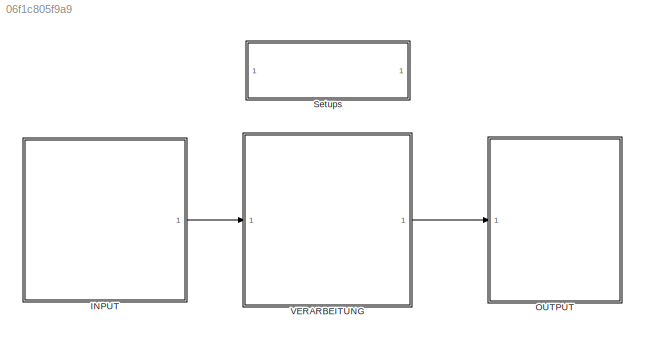
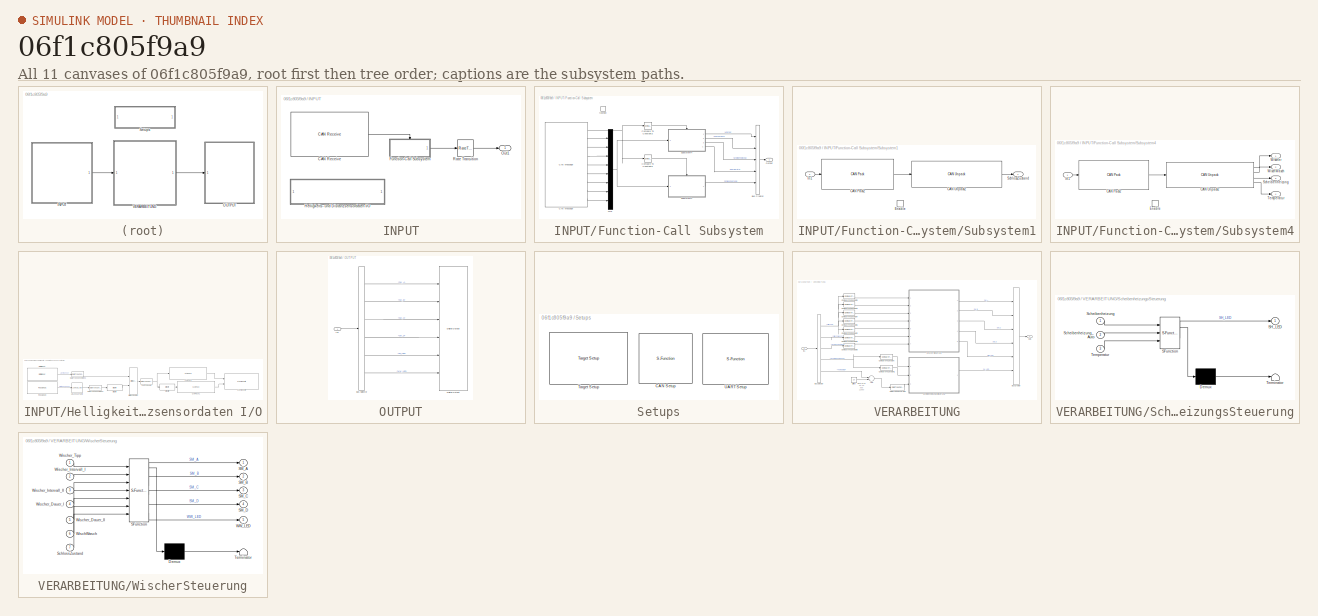
[diagram: thumbnail index - all 11 canvases of the model, root first then tree order]
MODEL slx_06f1c805f9a9
KIND model
CONFIG AbsTol = auto
CONFIG EnableMultiTasking = off
CONFIG FixedStep = auto
CONFIG MaxStep = auto
CONFIG MinStep = auto
CONFIG PreLoadFcn = waijung.modelPreload; % Required for working with Waijung Blockset. Do not remove.
CONFIG RelTol = 1e-3
CONFIG SampleTimeConstraint = Unconstrained
CONFIG Solver = FixedStepAuto
CONFIG SolverName = FixedStepAuto
CONFIG StartTime = 0.0
CONFIG StopTime = 10.0
BLOCK [SubSystem] INPUT
  Ports = [0, 1]
  RequestExecContextInheritance = off
BLOCK [Reference] INPUT/CAN Receive  REF=stm32f4_canbus_lib/CAN Receive
  Ports = [0, 1]
  SourceBlock = stm32f4_canbus_lib/CAN Receive
  SourceProductName = Waijung Blockset
  SourceType = stm32f4_can
BLOCK [SubSystem] INPUT/Function-Call Subsystem
  Ports = [0, 1, 0, 1]
  RequestExecContextInheritance = off
  TreatAsAtomicUnit = on
BLOCK [BusCreator] INPUT/Function-Call Subsystem/Bus Creator
  DisplayOption = bar
  InheritFromInputs = on
  Inputs = 5
  Ports = [5, 1]
BLOCK [Reference] INPUT/Function-Call Subsystem/CAN Message  REF=stm32f4_canbus_lib/CAN Message
  Ports = [0, 9]
  SourceBlock = stm32f4_canbus_lib/CAN Message
  SourceProductName = Waijung Blockset
  SourceType = stm32f4_can
BLOCK [Reference] INPUT/Function-Call Subsystem/Compare To Constant3  REF=simulink/Logic and Bit
Operations/Compare
To Constant
  Ports = [1, 1]
  SourceBlock = simulink/Logic and Bit\nOperations/Compare\nTo Constant
  SourceProductBaseCode = SL
  SourceProductName = Simulink
  SourceType = Compare To Constant
BLOCK [Reference] INPUT/Function-Call Subsystem/Compare To Constant5  REF=simulink/Logic and Bit
Operations/Compare
To Constant
  Ports = [1, 1]
  SourceBlock = simulink/Logic and Bit\nOperations/Compare\nTo Constant
  SourceProductBaseCode = SL
  SourceProductName = Simulink
  SourceType = Compare To Constant
BLOCK [Mux] INPUT/Function-Call Subsystem/Mux
  DisplayOption = bar
  Inputs = 8
  Ports = [8, 1]
BLOCK [Outport] INPUT/Function-Call Subsystem/Output
  IconDisplay = Port number
  VectorParamsAs1DForOutWhenUnconnected = off
BLOCK [SubSystem] INPUT/Function-Call Subsystem/Subsystem1
  Ports = [1, 1, 1]
  RequestExecContextInheritance = off
BLOCK [Reference] INPUT/Function-Call Subsystem/Subsystem1/CAN Pack2  REF=canmsglib/CAN Pack
  Ports = [1, 1]
  SourceBlock = canmsglib/CAN Pack
  SourceProductBaseCode = XP
  SourceProductName = Simulink Real-Time
  SourceType = CAN Pack
BLOCK [Reference] INPUT/Function-Call Subsystem/Subsystem1/CAN Unpack2  REF=canmsglib/CAN Unpack
  Ports = [1, 1]
  SourceBlock = canmsglib/CAN Unpack
  SourceProductBaseCode = XP
  SourceProductName = Simulink Real-Time
  SourceType = CAN Unpack
BLOCK [EnablePort] INPUT/Function-Call Subsystem/Subsystem1/Enable
  Ports = []
BLOCK [Inport] INPUT/Function-Call Subsystem/Subsystem1/In1
  IconDisplay = Port number
BLOCK [Outport] INPUT/Function-Call Subsystem/Subsystem1/SchlossZustand
  IconDisplay = Port number
  VectorParamsAs1DForOutWhenUnconnected = off
BLOCK [SubSystem] INPUT/Function-Call Subsystem/Subsystem4
  Ports = [1, 4, 1]
  RequestExecContextInheritance = off
BLOCK [Reference] INPUT/Function-Call Subsystem/Subsystem4/CAN Pack2  REF=canmsglib/CAN Pack
  Ports = [1, 1]
  SourceBlock = canmsglib/CAN Pack
  SourceProductBaseCode = XP
  SourceProductName = Simulink Real-Time
  SourceType = CAN Pack
BLOCK [Reference] INPUT/Function-Call Subsystem/Subsystem4/CAN Unpack2  REF=canmsglib/CAN Unpack
  Ports = [1, 4]
  SourceBlock = canmsglib/CAN Unpack
  SourceProductBaseCode = XP
  SourceProductName = Simulink Real-Time
  SourceType = CAN Unpack
BLOCK [EnablePort] INPUT/Function-Call Subsystem/Subsystem4/Enable
  Ports = []
BLOCK [Inport] INPUT/Function-Call Subsystem/Subsystem4/In1
  IconDisplay = Port number
BLOCK [Outport] INPUT/Function-Call Subsystem/Subsystem4/Scheibenheizung
  IconDisplay = Port number
  Port = 3
  VectorParamsAs1DForOutWhenUnconnected = off
BLOCK [Outport] INPUT/Function-Call Subsystem/Subsystem4/Temperatur
  IconDisplay = Port number
  Port = 4
  VectorParamsAs1DForOutWhenUnconnected = off
BLOCK [Outport] INPUT/Function-Call Subsystem/Subsystem4/WischWasch
  IconDisplay = Port number
  Port = 2
  VectorParamsAs1DForOutWhenUnconnected = off
BLOCK [Outport] INPUT/Function-Call Subsystem/Subsystem4/Wischer
  IconDisplay = Port number
  VectorParamsAs1DForOutWhenUnconnected = off
BLOCK [TriggerPort] INPUT/Function-Call Subsystem/function
  Ports = []
  StatesWhenEnabling = held
  TriggerType = function-call
  VariantControl = Variant
BLOCK [SubSystem] INPUT/Helligkeits- und Distanzsensordaten I//O
  Ports = []
  RequestExecContextInheritance = off
BLOCK [Lookup_n-D] INPUT/Helligkeits- und Distanzsensordaten I//O/1-D Lookup Table
  BreakpointsForDimension1 = [310,3800]
  IndexSearchMethod = Linear search
  InternalRulePriority = Speed
  NumberOfTableDimensions = 1
  Ports = [1, 1]
  RndMeth = Simplest
  Table = [500,0]
BLOCK [Reference] INPUT/Helligkeits- und Distanzsensordaten I//O/Bit Shift  REF=hdlsllib/Logic and Bit
Operations/Bit Shift
  Ports = [1, 1]
  SourceBlock = hdlsllib/Logic and Bit\nOperations/Bit Shift
  SourceProductBaseCode = SL
  SourceProductName = Simulink
  SourceType = Bit Shift
BLOCK [Reference] INPUT/Helligkeits- und Distanzsensordaten I//O/Bit Shift1  REF=hdlsllib/Logic and Bit
Operations/Bit Shift
  Ports = [1, 1]
  SourceBlock = hdlsllib/Logic and Bit\nOperations/Bit Shift
  SourceProductBaseCode = SL
  SourceProductName = Simulink
  SourceType = Bit Shift
BLOCK [Reference] INPUT/Helligkeits- und Distanzsensordaten I//O/Bitwise Operator  REF=simulink/Logic and Bit
Operations/Bitwise
Operator
  Ports = [2, 1]
  SourceBlock = simulink/Logic and Bit\nOperations/Bitwise\nOperator
  SourceProductBaseCode = SL
  SourceProductName = Simulink
  SourceType = Bitwise Operator
BLOCK [Reference] INPUT/Helligkeits- und Distanzsensordaten I//O/CAN Pack  REF=canmsglib/CAN Pack
  Ports = [1, 1]
  SourceBlock = canmsglib/CAN Pack
  SourceProductBaseCode = XP
  SourceProductName = Simulink Real-Time
  SourceType = CAN Pack
BLOCK [Reference] INPUT/Helligkeits- und Distanzsensordaten I//O/CAN Pack1  REF=canmsglib/CAN Pack
  Ports = [1, 1]
  SourceBlock = canmsglib/CAN Pack
  SourceProductBaseCode = XP
  SourceProductName = Simulink Real-Time
  SourceType = CAN Pack
BLOCK [Reference] INPUT/Helligkeits- und Distanzsensordaten I//O/CAN Transmit  REF=stm32f4_canbus_lib/CAN Transmit
  Ports = [2]
  SourceBlock = stm32f4_canbus_lib/CAN Transmit
  SourceType = stm32f4_can
BLOCK [DataTypeConversion] INPUT/Helligkeits- und Distanzsensordaten I//O/Cast To Double
  OutDataTypeStr = double
  RndMeth = Floor
  SaturateOnIntegerOverflow = off
BLOCK [DataTypeConversion] INPUT/Helligkeits- und Distanzsensordaten I//O/Data Type Conversion1
  OutDataTypeStr = uint16
  RndMeth = Floor
  SaturateOnIntegerOverflow = off
BLOCK [DataTypeConversion] INPUT/Helligkeits- und Distanzsensordaten I//O/Data Type Conversion2
  OutDataTypeStr = uint16
  RndMeth = Floor
  SaturateOnIntegerOverflow = off
BLOCK [Reference] INPUT/Helligkeits- und Distanzsensordaten I//O/Digital Input  REF=stm32f4_io_lib/Digital Input
  Ports = [0, 1]
  SourceBlock = stm32f4_io_lib/Digital Input
  SourceType = stm32f4_digital_input
BLOCK [Reference] INPUT/Helligkeits- und Distanzsensordaten I//O/Regular ADC  REF=stm32f4_adc_lib/Regular ADC
  Ports = [0, 1]
  SourceBlock = stm32f4_adc_lib/Regular ADC
  SourceType = stm32f4_regular_adc
BLOCK [Outport] INPUT/Out1
  IconDisplay = Port number
  VectorParamsAs1DForOutWhenUnconnected = off
BLOCK [RateTransition] INPUT/Rate Transition
BLOCK [SubSystem] OUTPUT
  Ports = [1]
  RequestExecContextInheritance = off
BLOCK [BusSelector] OUTPUT/Bus Selector
  OutputAsBus = off
  OutputSignals = SM_A,SM_B,SM_C,SM_D,SH_LED,WW_LED
  Ports = [1, 6]
BLOCK [Reference] OUTPUT/Digital Output  REF=stm32f4_io_lib/Digital Output
  Ports = [6]
  SourceBlock = stm32f4_io_lib/Digital Output
  SourceProductName = Waijung Blockset
  SourceType = stm32f4_digital_output
BLOCK [Inport] OUTPUT/In1
  IconDisplay = Port number
BLOCK [SubSystem] Setups
  Ports = []
  RequestExecContextInheritance = off
BLOCK [S-Function] Setups/CAN Setup
  EnableBusSupport = off
  FunctionName = stm32f4_can
  Parameters = conf,canmodule,0,inputarray,outputarray,'','',confstr,sampletime,sampletimestr,blockid
  Ports = []
  SFcnIsStateOwnerBlock = off
  SFunctionDeploymentMode = off
BLOCK [Reference] Setups/Target Setup  REF=stm32f4_device_config_lib/Target Setup
  Ports = []
  Priority = 100
  SourceBlock = stm32f4_device_config_lib/Target Setup
  SourceProductName = Waijung Blockset
  SourceType = stm32f4_target_setup
BLOCK [S-Function] Setups/UART Setup
  EnableBusSupport = off
  FunctionName = stm32f4_usart
  Parameters = configuration,uartmodule,transfer,baudrate,inputtype,outputtype,confstr,binheaderarray,binterminatorarray,asciiheader,asciiterminator,bindatalength,packetmode,varname,sampletime,sampletimestr,blockid
  Ports = []
  Priority = 1
  SFcnIsStateOwnerBlock = off
  SFunctionDeploymentMode = off
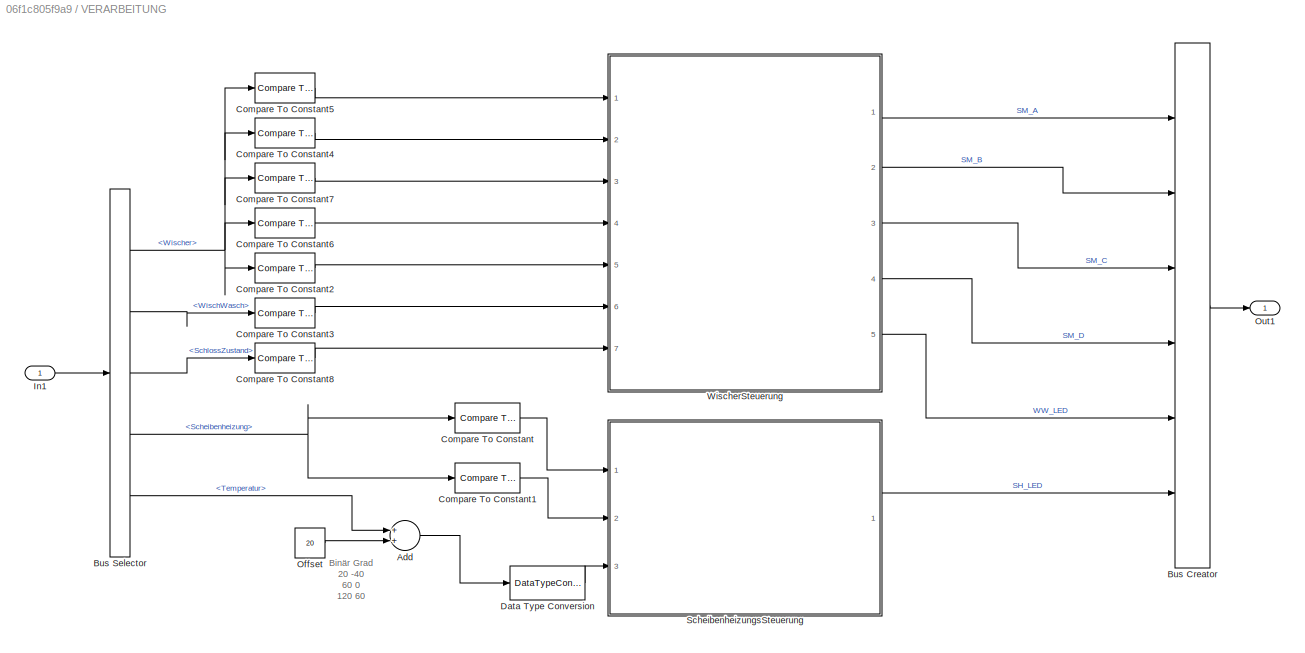
BLOCK [SubSystem] VERARBEITUNG
  Ports = [1, 1]
  RequestExecContextInheritance = off
BLOCK [Sum] VERARBEITUNG/Add
  InputSameDT = off
  OutDataTypeStr = Inherit: Inherit via internal rule
  Ports = [2, 1]
  SaturateOnIntegerOverflow = off
BLOCK [BusCreator] VERARBEITUNG/Bus Creator
  DisplayOption = bar
  InheritFromInputs = on
  Inputs = 6
  Ports = [6, 1]
BLOCK [BusSelector] VERARBEITUNG/Bus Selector
  OutputAsBus = off
  OutputSignals = Wischer,WischWasch,SchlossZustand,Scheibenheizung,Temperatur
  Ports = [1, 5]
BLOCK [Reference] VERARBEITUNG/Compare To Constant  REF=simulink/Logic and Bit
Operations/Compare
To Constant
  Ports = [1, 1]
  SourceBlock = simulink/Logic and Bit\nOperations/Compare\nTo Constant
  SourceProductBaseCode = SL
  SourceProductName = Simulink
  SourceType = Compare To Constant
BLOCK [Reference] VERARBEITUNG/Compare To Constant1  REF=simulink/Logic and Bit
Operations/Compare
To Constant
  Ports = [1, 1]
  SourceBlock = simulink/Logic and Bit\nOperations/Compare\nTo Constant
  SourceProductBaseCode = SL
  SourceProductName = Simulink
  SourceType = Compare To Constant
BLOCK [Reference] VERARBEITUNG/Compare To Constant2  REF=simulink/Logic and Bit
Operations/Compare
To Constant
  Ports = [1, 1]
  SourceBlock = simulink/Logic and Bit\nOperations/Compare\nTo Constant
  SourceProductBaseCode = SL
  SourceProductName = Simulink
  SourceType = Compare To Constant
BLOCK [Reference] VERARBEITUNG/Compare To Constant3  REF=simulink/Logic and Bit
Operations/Compare
To Constant
  Ports = [1, 1]
  SourceBlock = simulink/Logic and Bit\nOperations/Compare\nTo Constant
  SourceProductBaseCode = SL
  SourceProductName = Simulink
  SourceType = Compare To Constant
BLOCK [Reference] VERARBEITUNG/Compare To Constant4  REF=simulink/Logic and Bit
Operations/Compare
To Constant
  Ports = [1, 1]
  SourceBlock = simulink/Logic and Bit\nOperations/Compare\nTo Constant
  SourceProductBaseCode = SL
  SourceProductName = Simulink
  SourceType = Compare To Constant
BLOCK [Reference] VERARBEITUNG/Compare To Constant5  REF=simulink/Logic and Bit
Operations/Compare
To Constant
  Ports = [1, 1]
  SourceBlock = simulink/Logic and Bit\nOperations/Compare\nTo Constant
  SourceProductBaseCode = SL
  SourceProductName = Simulink
  SourceType = Compare To Constant
BLOCK [Reference] VERARBEITUNG/Compare To Constant6  REF=simulink/Logic and Bit
Operations/Compare
To Constant
  Ports = [1, 1]
  SourceBlock = simulink/Logic and Bit\nOperations/Compare\nTo Constant
  SourceProductBaseCode = SL
  SourceProductName = Simulink
  SourceType = Compare To Constant
BLOCK [Reference] VERARBEITUNG/Compare To Constant7  REF=simulink/Logic and Bit
Operations/Compare
To Constant
  Ports = [1, 1]
  SourceBlock = simulink/Logic and Bit\nOperations/Compare\nTo Constant
  SourceProductBaseCode = SL
  SourceProductName = Simulink
  SourceType = Compare To Constant
BLOCK [Reference] VERARBEITUNG/Compare To Constant8  REF=simulink/Logic and Bit
Operations/Compare
To Constant
  Ports = [1, 1]
  SourceBlock = simulink/Logic and Bit\nOperations/Compare\nTo Constant
  SourceProductBaseCode = SL
  SourceProductName = Simulink
  SourceType = Compare To Constant
BLOCK [DataTypeConversion] VERARBEITUNG/Data Type Conversion
  OutDataTypeStr = int16
  RndMeth = Floor
  SaturateOnIntegerOverflow = off
BLOCK [Inport] VERARBEITUNG/In1
  IconDisplay = Port number
BLOCK [Constant] VERARBEITUNG/Offset
  Value = 20
BLOCK [Outport] VERARBEITUNG/Out1
  IconDisplay = Port number
  VectorParamsAs1DForOutWhenUnconnected = off
BLOCK [SubSystem] VERARBEITUNG/ScheibenheizungsSteuerung
  ErrorFcn = Stateflow.Translate.translate
  PermitHierarchicalResolution = ExplicitOnly
  Ports = [3, 1]
  RequestExecContextInheritance = off
  SFBlockType = Chart
  TreatAsAtomicUnit = on
BLOCK [Demux] VERARBEITUNG/ScheibenheizungsSteuerung/ Demux 
  Outputs = 1
  Ports = [1, 1]
BLOCK [S-Function] VERARBEITUNG/ScheibenheizungsSteuerung/ SFunction 
  EnableBusSupport = off
  FunctionName = sf_sfun
  PortCounts = [3 2]
  Ports = [3, 2]
  SFcnIsStateOwnerBlock = off
  SFunctionDeploymentMode = off
  Tag = Stateflow S-Function 6
BLOCK [Terminator] VERARBEITUNG/ScheibenheizungsSteuerung/ Terminator 
BLOCK [Outport] VERARBEITUNG/ScheibenheizungsSteuerung/SH_LED
  IconDisplay = Port number
  VectorParamsAs1DForOutWhenUnconnected = off
BLOCK [Inport] VERARBEITUNG/ScheibenheizungsSteuerung/Scheibenheizung
  IconDisplay = Port number
BLOCK [Inport] VERARBEITUNG/ScheibenheizungsSteuerung/Scheibenheizung_Auto
  IconDisplay = Port number
  Port = 2
BLOCK [Inport] VERARBEITUNG/ScheibenheizungsSteuerung/Temperatur
  IconDisplay = Port number
  Port = 3
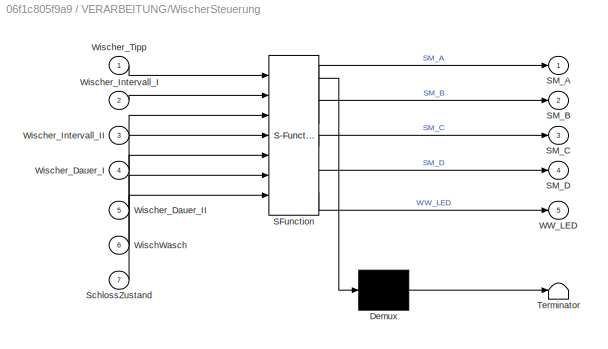
BLOCK [SubSystem] VERARBEITUNG/WischerSteuerung
  ErrorFcn = Stateflow.Translate.translate
  PermitHierarchicalResolution = ExplicitOnly
  Ports = [7, 5]
  RequestExecContextInheritance = off
  SFBlockType = Chart
  TreatAsAtomicUnit = on
BLOCK [Demux] VERARBEITUNG/WischerSteuerung/ Demux 
  Outputs = 1
  Ports = [1, 1]
BLOCK [S-Function] VERARBEITUNG/WischerSteuerung/ SFunction 
  EnableBusSupport = off
  FunctionName = sf_sfun
  PortCounts = [7 6]
  Ports = [7, 6]
  SFcnIsStateOwnerBlock = off
  SFunctionDeploymentMode = off
  Tag = Stateflow S-Function 5
BLOCK [Terminator] VERARBEITUNG/WischerSteuerung/ Terminator 
BLOCK [Outport] VERARBEITUNG/WischerSteuerung/SM_A
  IconDisplay = Port number
  VectorParamsAs1DForOutWhenUnconnected = off
BLOCK [Outport] VERARBEITUNG/WischerSteuerung/SM_B
  IconDisplay = Port number
  Port = 2
  VectorParamsAs1DForOutWhenUnconnected = off
BLOCK [Outport] VERARBEITUNG/WischerSteuerung/SM_C
  IconDisplay = Port number
  Port = 3
  VectorParamsAs1DForOutWhenUnconnected = off
BLOCK [Outport] VERARBEITUNG/WischerSteuerung/SM_D
  IconDisplay = Port number
  Port = 4
  VectorParamsAs1DForOutWhenUnconnected = off
BLOCK [Inport] VERARBEITUNG/WischerSteuerung/SchlossZustand
  IconDisplay = Port number
  Port = 7
BLOCK [Outport] VERARBEITUNG/WischerSteuerung/WW_LED
  IconDisplay = Port number
  Port = 5
  VectorParamsAs1DForOutWhenUnconnected = off
BLOCK [Inport] VERARBEITUNG/WischerSteuerung/WischWasch
  IconDisplay = Port number
  Port = 6
BLOCK [Inport] VERARBEITUNG/WischerSteuerung/Wischer_Dauer_I
  IconDisplay = Port number
  Port = 4
BLOCK [Inport] VERARBEITUNG/WischerSteuerung/Wischer_Dauer_II
  IconDisplay = Port number
  Port = 5
BLOCK [Inport] VERARBEITUNG/WischerSteuerung/Wischer_Intervall_I
  IconDisplay = Port number
  Port = 2
BLOCK [Inport] VERARBEITUNG/WischerSteuerung/Wischer_Intervall_II
  IconDisplay = Port number
  Port = 3
BLOCK [Inport] VERARBEITUNG/WischerSteuerung/Wischer_Tipp
  IconDisplay = Port number
ANNOTATION VERARBEITUNG: Binär Grad 20 -40 60 0 120 60
LINE INPUT/CAN Receive:1 -> INPUT/Function-Call Subsystem:trigger
LINE INPUT/Function-Call Subsystem/Bus Creator:1 -> INPUT/Function-Call Subsystem/Output:1
NET INPUT/Function-Call Subsystem/CAN Message:1 -> INPUT/Function-Call Subsystem/Compare To Constant3:1, INPUT/Function-Call Subsystem/Compare To Constant5:1
LINE INPUT/Function-Call Subsystem/CAN Message:2 -> INPUT/Function-Call Subsystem/Mux:1
LINE INPUT/Function-Call Subsystem/CAN Message:3 -> INPUT/Function-Call Subsystem/Mux:2
LINE INPUT/Function-Call Subsystem/CAN Message:4 -> INPUT/Function-Call Subsystem/Mux:3
LINE INPUT/Function-Call Subsystem/CAN Message:5 -> INPUT/Function-Call Subsystem/Mux:4
LINE INPUT/Function-Call Subsystem/CAN Message:6 -> INPUT/Function-Call Subsystem/Mux:5
LINE INPUT/Function-Call Subsystem/CAN Message:7 -> INPUT/Function-Call Subsystem/Mux:6
LINE INPUT/Function-Call Subsystem/CAN Message:8 -> INPUT/Function-Call Subsystem/Mux:7
LINE INPUT/Function-Call Subsystem/CAN Message:9 -> INPUT/Function-Call Subsystem/Mux:8
LINE INPUT/Function-Call Subsystem/Compare To Constant3:1 -> INPUT/Function-Call Subsystem/Subsystem4:enable
LINE INPUT/Function-Call Subsystem/Compare To Constant5:1 -> INPUT/Function-Call Subsystem/Subsystem1:enable
NET INPUT/Function-Call Subsystem/Mux:1 -> INPUT/Function-Call Subsystem/Subsystem1:1, INPUT/Function-Call Subsystem/Subsystem4:1
LINE INPUT/Function-Call Subsystem/Subsystem1/CAN Pack2:1 -> INPUT/Function-Call Subsystem/Subsystem1/CAN Unpack2:1
LINE INPUT/Function-Call Subsystem/Subsystem1/CAN Unpack2:1 -> INPUT/Function-Call Subsystem/Subsystem1/SchlossZustand:1
LINE INPUT/Function-Call Subsystem/Subsystem1/In1:1 -> INPUT/Function-Call Subsystem/Subsystem1/CAN Pack2:1
LINE INPUT/Function-Call Subsystem/Subsystem1:1 -> INPUT/Function-Call Subsystem/Bus Creator:5
LINE INPUT/Function-Call Subsystem/Subsystem4/CAN Pack2:1 -> INPUT/Function-Call Subsystem/Subsystem4/CAN Unpack2:1
LINE INPUT/Function-Call Subsystem/Subsystem4/CAN Unpack2:1 -> INPUT/Function-Call Subsystem/Subsystem4/Wischer:1
LINE INPUT/Function-Call Subsystem/Subsystem4/CAN Unpack2:2 -> INPUT/Function-Call Subsystem/Subsystem4/WischWasch:1
LINE INPUT/Function-Call Subsystem/Subsystem4/CAN Unpack2:3 -> INPUT/Function-Call Subsystem/Subsystem4/Scheibenheizung:1
LINE INPUT/Function-Call Subsystem/Subsystem4/CAN Unpack2:4 -> INPUT/Function-Call Subsystem/Subsystem4/Temperatur:1
LINE INPUT/Function-Call Subsystem/Subsystem4/In1:1 -> INPUT/Function-Call Subsystem/Subsystem4/CAN Pack2:1
LINE INPUT/Function-Call Subsystem/Subsystem4:1 -> INPUT/Function-Call Subsystem/Bus Creator:1
LINE INPUT/Function-Call Subsystem/Subsystem4:2 -> INPUT/Function-Call Subsystem/Bus Creator:2
LINE INPUT/Function-Call Subsystem/Subsystem4:3 -> INPUT/Function-Call Subsystem/Bus Creator:3
LINE INPUT/Function-Call Subsystem/Subsystem4:4 -> INPUT/Function-Call Subsystem/Bus Creator:4
LINE INPUT/Function-Call Subsystem:1 -> INPUT/Rate Transition:1
LINE INPUT/Helligkeits- und Distanzsensordaten I//O/1-D Lookup Table:1 -> INPUT/Helligkeits- und Distanzsensordaten I//O/Data Type Conversion1:1
LINE INPUT/Helligkeits- und Distanzsensordaten I//O/Bit Shift1:1 -> INPUT/Helligkeits- und Distanzsensordaten I//O/CAN Pack1:1
LINE INPUT/Helligkeits- und Distanzsensordaten I//O/Bit Shift:1 -> INPUT/Helligkeits- und Distanzsensordaten I//O/Bitwise Operator:2
LINE INPUT/Helligkeits- und Distanzsensordaten I//O/Bitwise Operator:1 -> INPUT/Helligkeits- und Distanzsensordaten I//O/Cast To Double:1
LINE INPUT/Helligkeits- und Distanzsensordaten I//O/CAN Pack1:1 -> INPUT/Helligkeits- und Distanzsensordaten I//O/CAN Transmit:2
LINE INPUT/Helligkeits- und Distanzsensordaten I//O/CAN Pack:1 -> INPUT/Helligkeits- und Distanzsensordaten I//O/CAN Transmit:1
NET INPUT/Helligkeits- und Distanzsensordaten I//O/Cast To Double:1 -> INPUT/Helligkeits- und Distanzsensordaten I//O/Bit Shift1:1, INPUT/Helligkeits- und Distanzsensordaten I//O/CAN Pack:1
LINE INPUT/Helligkeits- und Distanzsensordaten I//O/Data Type Conversion1:1 -> INPUT/Helligkeits- und Distanzsensordaten I//O/Bit Shift:1
LINE INPUT/Helligkeits- und Distanzsensordaten I//O/Data Type Conversion2:1 -> INPUT/Helligkeits- und Distanzsensordaten I//O/Bitwise Operator:1
LINE INPUT/Helligkeits- und Distanzsensordaten I//O/Digital Input:1 -> INPUT/Helligkeits- und Distanzsensordaten I//O/Data Type Conversion2:1
LINE INPUT/Helligkeits- und Distanzsensordaten I//O/Regular ADC:1 -> INPUT/Helligkeits- und Distanzsensordaten I//O/1-D Lookup Table:1
LINE INPUT/Rate Transition:1 -> INPUT/Out1:1
LINE INPUT:1 -> VERARBEITUNG:1
LINE OUTPUT/Bus Selector:1 -> OUTPUT/Digital Output:1
LINE OUTPUT/Bus Selector:2 -> OUTPUT/Digital Output:2
LINE OUTPUT/Bus Selector:3 -> OUTPUT/Digital Output:3
LINE OUTPUT/Bus Selector:4 -> OUTPUT/Digital Output:4
LINE OUTPUT/Bus Selector:5 -> OUTPUT/Digital Output:5
LINE OUTPUT/Bus Selector:6 -> OUTPUT/Digital Output:6
LINE OUTPUT/In1:1 -> OUTPUT/Bus Selector:1
LINE VERARBEITUNG/Add:1 -> VERARBEITUNG/Data Type Conversion:1
LINE VERARBEITUNG/Bus Creator:1 -> VERARBEITUNG/Out1:1
NET VERARBEITUNG/Bus Selector:1 -> VERARBEITUNG/Compare To Constant2:1, VERARBEITUNG/Compare To Constant4:1, VERARBEITUNG/Compare To Constant5:1, VERARBEITUNG/Compare To Constant6:1, VERARBEITUNG/Compare To Constant7:1
LINE VERARBEITUNG/Bus Selector:2 -> VERARBEITUNG/Compare To Constant3:1
LINE VERARBEITUNG/Bus Selector:3 -> VERARBEITUNG/Compare To Constant8:1
NET VERARBEITUNG/Bus Selector:4 -> VERARBEITUNG/Compare To Constant1:1, VERARBEITUNG/Compare To Constant:1
LINE VERARBEITUNG/Bus Selector:5 -> VERARBEITUNG/Add:1
LINE VERARBEITUNG/Compare To Constant1:1 -> VERARBEITUNG/ScheibenheizungsSteuerung:2
LINE VERARBEITUNG/Compare To Constant2:1 -> VERARBEITUNG/WischerSteuerung:5
LINE VERARBEITUNG/Compare To Constant3:1 -> VERARBEITUNG/WischerSteuerung:6
LINE VERARBEITUNG/Compare To Constant4:1 -> VERARBEITUNG/WischerSteuerung:2
LINE VERARBEITUNG/Compare To Constant5:1 -> VERARBEITUNG/WischerSteuerung:1
LINE VERARBEITUNG/Compare To Constant6:1 -> VERARBEITUNG/WischerSteuerung:4
LINE VERARBEITUNG/Compare To Constant7:1 -> VERARBEITUNG/WischerSteuerung:3
LINE VERARBEITUNG/Compare To Constant8:1 -> VERARBEITUNG/WischerSteuerung:7
LINE VERARBEITUNG/Compare To Constant:1 -> VERARBEITUNG/ScheibenheizungsSteuerung:1
LINE VERARBEITUNG/Data Type Conversion:1 -> VERARBEITUNG/ScheibenheizungsSteuerung:3
LINE VERARBEITUNG/In1:1 -> VERARBEITUNG/Bus Selector:1
LINE VERARBEITUNG/Offset:1 -> VERARBEITUNG/Add:2
LINE VERARBEITUNG/ScheibenheizungsSteuerung:1 -> VERARBEITUNG/Bus Creator:6
LINE VERARBEITUNG/WischerSteuerung:1 -> VERARBEITUNG/Bus Creator:1
LINE VERARBEITUNG/WischerSteuerung:2 -> VERARBEITUNG/Bus Creator:2
LINE VERARBEITUNG/WischerSteuerung:3 -> VERARBEITUNG/Bus Creator:3
LINE VERARBEITUNG/WischerSteuerung:4 -> VERARBEITUNG/Bus Creator:4
LINE VERARBEITUNG/WischerSteuerung:5 -> VERARBEITUNG/Bus Creator:5
LINE VERARBEITUNG:1 -> OUTPUT:1
note: NET lines group one-source signal fan-out (src -> all destinations, sorted); 1:1 wires keep LINE
CHART VERARBEITUNG/WischerSteuerung states=18 transitions=27
  STATE_LABEL 'Wischer\nen, du: wisher_cnt = 0'
  STATE_LABEL 'Dauer_Schnell\nen, du: wischen = true\n frequency = 0.01852\n wisher_delay = 0\n'
  STATE_LABEL 'Dauer_Langsam\nen, du: wischen = true\n frequency = 0.03704\n wisher_delay = 0\n'
  STATE_LABEL 'OFF\nen, du: wischen = false\nwisher_delay = 0'
  STATE_LABEL 'Intervall_Langsam\nen, du: wischen = true\n frequency = 0.03704\n wisher_delay = 4'
  STATE_LABEL 'Intervall_Schnell\nen, du: wischen = true\n frequency = 0.03704\n wisher_delay = 2'
  STATE_LABEL 'Tipp\nen, du: wischen = true\n frequency = 0.03704\n wisher_delay = 0'
  STATE_LABEL 'Wisch_Wasch_Aktivierung\nen, du:\nif SchlossZustand == true\n    WischWaschActive = true\nend\nInterrupt = false\nfrequency = 0.03704\nwisher_delay = 0\nwisher_cnt = 3'
  STATE_LABEL '[Wischer_Dauer_II]'
  STATE_LABEL '[Wischer_Dauer_I]'
  STATE_LABEL '[Wischer_Intervall_I]'
  STATE_LABEL '[Wischer_Intervall_II]'
  STATE_LABEL '[Wischer_Tipp]'
  STATE_LABEL '[WischWasch || Interrupt]'
  STATE_LABEL 'Dauer_Schnell\nen, du: wischen = true\n frequency = 0.01852\n wisher_delay = 0\n'
  STATE_LABEL 'Dauer_Langsam\nen, du: wischen = true\n frequency = 0.03704\n wisher_delay = 0\n'
  STATE_LABEL 'OFF\nen, du: wischen = false\nwisher_delay = 0'
  STATE_LABEL 'Intervall_Langsam\nen, du: wischen = true\n frequency = 0.03704\n wisher_delay = 4'
  STATE_LABEL 'Intervall_Schnell\nen, du: wischen = true\n frequency = 0.03704\n wisher_delay = 2'
  STATE_LABEL 'Tipp\nen, du: wischen = true\n frequency = 0.03704\n wisher_delay = 0'
  STATE_LABEL 'Wisch_Wasch_Aktivierung\nen, du:\nif SchlossZustand == true\n    WischWaschActive = true\nend\nInterrupt = false\nfrequency = 0.03704\nwisher_delay = 0\nwisher_cnt = 3'
  STATE_LABEL 'State_MotorWischen1\n en, du: if counter==27\n     linkslauf = true\n end\n if WischWasch == true\n     Interrupt = true\n end\n'
  STATE_LABEL 'Dummy\nentry:\n SM_A=true;\n SM_B=true;\n SM_C=false;\n SM_D=false;\n'
  STATE_LABEL 'Dummy1\nentry:\n SM_A=false;\n SM_B=true;\n SM_C=true;\n SM_D=false;\n'
  STATE_LABEL 'Dummy3\nentry:\nSM_A=true;\nSM_B=false;\nSM_C=false;\nSM_D=true;\n'
  STATE_LABEL 'Dummy2\nentry:\n SM_A=false;\n SM_B=false;\n SM_C=true;\n SM_D=true;\n'
  STATE_LABEL '[linkslauf == 0 && counter <= 27 && after(frequency,sec)]{counter = counter + 1}'
  STATE_LABEL '[linkslauf == 1 && counter <= 54 && after(frequency,sec)]{counter = counter + 1}'
  STATE_LABEL '[linkslauf == 0 && counter <= 27 && after(frequency,sec)]{counter = counter + 1}'
  STATE_LABEL '[linkslauf == 1 && counter <= 54 && after(frequency,sec)]{counter = counter + 1}'
  STATE_LABEL '[linkslauf == 1 && counter <= 54 && after(frequency,sec)]{counter = counter + 1}'
  STATE_LABEL '[linkslauf == 0 && counter <= 27 && after(frequency,sec)]{counter = counter + 1}'
  STATE_LABEL '[linkslauf == 1 && counter <= 54 && after(frequency,sec)]{counter = counter + 1}'
  STATE_LABEL '[linkslauf == 0 && counter <= 27 && after(frequency,sec)]{counter = counter + 1}'
  STATE_LABEL 'Dummy\nentry:\n SM_A=true;\n SM_B=true;\n SM_C=false;\n SM_D=false;\n'
  STATE_LABEL 'Dummy1\nentry:\n SM_A=false;\n SM_B=true;\n SM_C=true;\n SM_D=false;\n'
  STATE_LABEL 'Dummy3\nentry:\nSM_A=true;\nSM_B=false;\nSM_C=false;\nSM_D=true;\n'
  STATE_LABEL 'Dummy2\nentry:\n SM_A=false;\n SM_B=false;\n SM_C=true;\n SM_D=true;\n'
  STATE_LABEL '1s Wischen:\nfrequency = 0.01852'
  STATE_LABEL '2s Wischen:\nfrequency = 0.03704'
CHART VERARBEITUNG/ScheibenheizungsSteuerung states=4 transitions=7
  STATE_LABEL 'State_WaitForDeactivateButton\nentry: SH_LED=false'
  STATE_LABEL 'State_OFF\nentry:\nSH_LED=false\n'
  STATE_LABEL 'State_Auto\nentry: SH_LED=true'
  STATE_LABEL 'State_Manuell\nentry:\nSH_LED=true'
